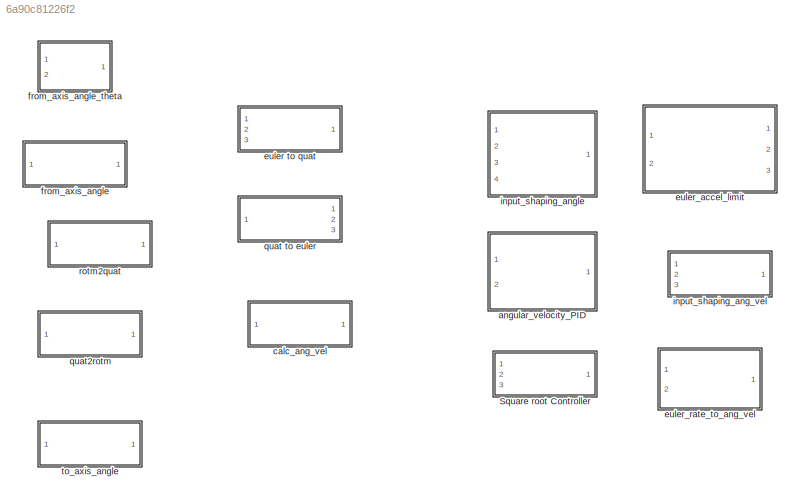
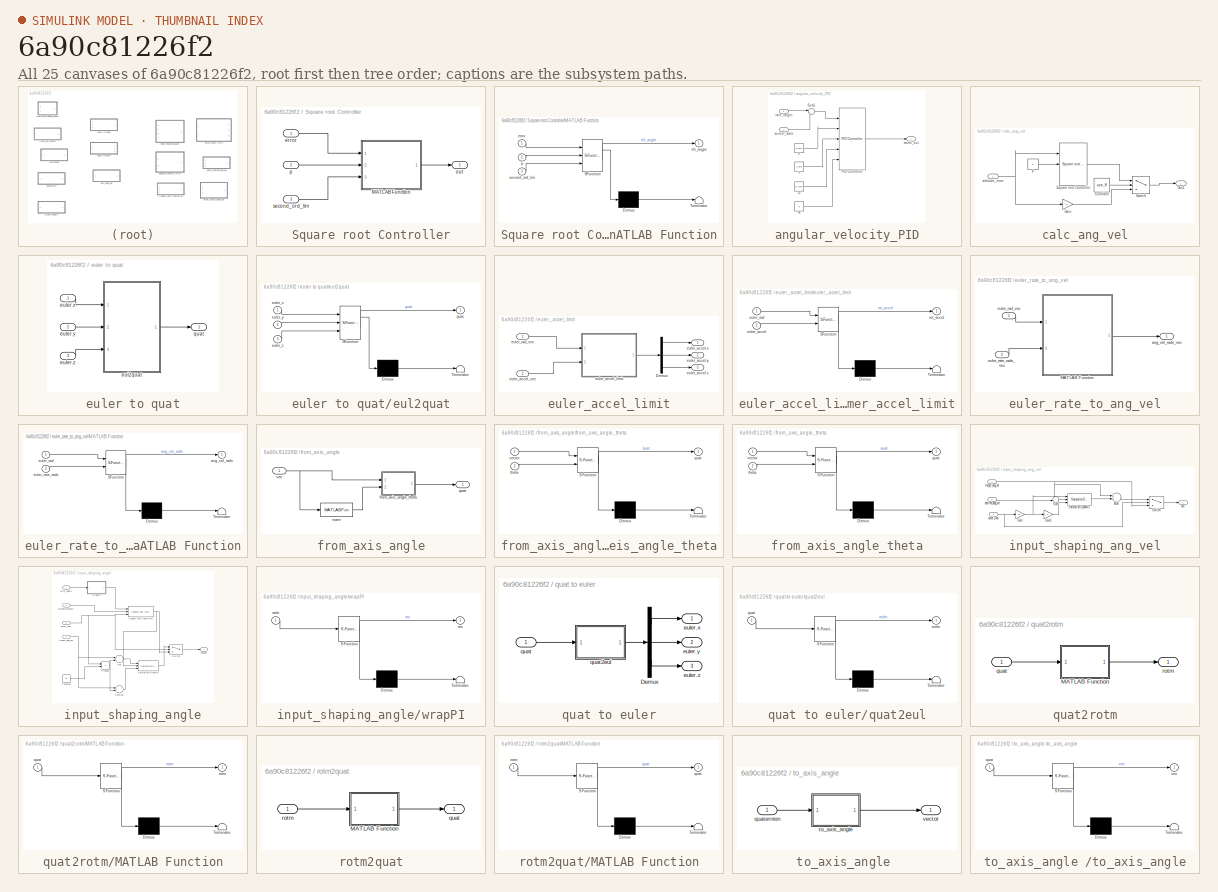
[diagram: thumbnail index - all 25 canvases of the model, root first then tree order]
MODEL slx_6a90c81226f2
KIND library
CONFIG AbsTol = auto
CONFIG FixedStep = auto
CONFIG MaxStep = auto
CONFIG MinStep = auto
CONFIG RelTol = 1e-3
CONFIG SampleTimeConstraint = Unconstrained
CONFIG Solver = ode45
CONFIG SolverMode = Auto
CONFIG SolverName = ode45
CONFIG StartTime = 0.0
CONFIG StopTime = 10.0
BLOCK [SubSystem] Square root Controller
  Ports = [3, 1]
  RequestExecContextInheritance = off
  Variant = off
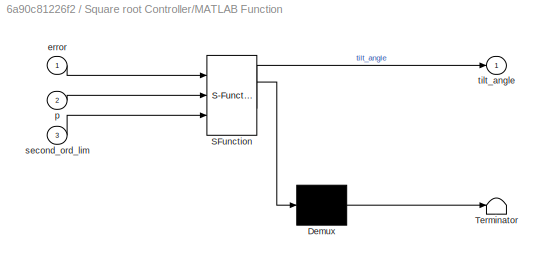
BLOCK [SubSystem] Square root Controller/MATLAB Function
  ErrorFcn = Stateflow.Translate.translate
  PermitHierarchicalResolution = ParametersOnly
  Ports = [3, 1]
  RequestExecContextInheritance = off
  SFBlockType = MATLAB Function
  TreatAsAtomicUnit = on
  Variant = off
BLOCK [Demux] Square root Controller/MATLAB Function/ Demux 
  Outputs = 1
  Ports = [1, 1]
BLOCK [S-Function] Square root Controller/MATLAB Function/ SFunction 
  EnableBusSupport = off
  FunctionName = sf_sfun
  PortCounts = [3 2]
  Ports = [3, 2]
  SFunctionDeploymentMode = off
  Tag = Stateflow S-Function arducopter_library 2
BLOCK [Terminator] Square root Controller/MATLAB Function/ Terminator 
BLOCK [Inport] Square root Controller/MATLAB Function/error
  IconDisplay = Port number
BLOCK [Inport] Square root Controller/MATLAB Function/p
  IconDisplay = Port number
  Port = 2
BLOCK [Inport] Square root Controller/MATLAB Function/second_ord_lim
  IconDisplay = Port number
  Port = 3
BLOCK [Outport] Square root Controller/MATLAB Function/tilt_angle
  IconDisplay = Port number
BLOCK [Inport] Square root Controller/error
  IconDisplay = Port number
BLOCK [Outport] Square root Controller/out
  IconDisplay = Port number
BLOCK [Inport] Square root Controller/p
  IconDisplay = Port number
  Port = 2
BLOCK [Inport] Square root Controller/second_ord_lim
  IconDisplay = Port number
  Port = 3
BLOCK [SubSystem] angular_velocity_PID
  Ports = [2, 1]
  RequestExecContextInheritance = off
  Variant = off
BLOCK [Constant] angular_velocity_PID/D
  Value = D_rate
BLOCK [Constant] angular_velocity_PID/I
  Value = I_rate
BLOCK [Constant] angular_velocity_PID/N
  Value = N
BLOCK [Constant] angular_velocity_PID/P
  Value = P_rate
BLOCK [Reference] angular_velocity_PID/PID Controller  REF=simulink/Continuous/PID Controller
  AntiWindupMode = none
  Controller = PID
  ControllerParametersSource = external
  D = 0
  DGainOutDataTypeStr = Inherit: Inherit via internal rule
  DOutDataTypeStr = Inherit: Inherit via internal rule
  DOutMax = []
  DOutMin = []
  DParamDataTypeStr = Inherit: Inherit via internal rule
  DParamMax = []
  DParamMin = []
  DProdOutDataTypeStr = Inherit: Inherit via internal rule
  DifferentiatorICPrevScaledInput = 0
  DifferentiatorOutDataTypeStr = Inherit: Inherit via internal rule
  DifferentiatorOutMax = []
  DifferentiatorOutMin = []
  ExternalReset = none
  FilterContinuousStateAttributes = ''
  FilterMethod = Forward Euler
  FilterOutDataTypeStr = Inherit: Inherit via internal rule
  FilterOutMax = []
  FilterOutMin = []
  FilterRTWStateStorageClass = Auto
  FilterStateMustResolveToSignalObject = off
  Form = Parallel
  I = 1
  IGainOutDataTypeStr = Inherit: Inherit via internal rule
  IOutDataTypeStr = Inherit: Inherit via internal rule
  IOutMax = []
  IOutMin = []
  IParamDataTypeStr = Inherit: Inherit via internal rule
  IParamMax = []
  IParamMin = []
  IProdOutDataTypeStr = Inherit: Inherit via internal rule
  IgnoreLimit = off
  InitialConditionForFilter = 0
  InitialConditionForIntegrator = 0
  InitialConditionSource = internal
  IntegratorContinuousStateAttributes = ''
  IntegratorMethod = Forward Euler
  IntegratorOutDataTypeStr = Inherit: Inherit via internal rule
  IntegratorOutMax = []
  IntegratorOutMin = []
  IntegratorRTWStateStorageClass = Auto
  IntegratorStateMustResolveToSignalObject = off
  Kb = 1
  KbOutDataTypeStr = Inherit: Inherit via internal rule
  KbOutMax = []
  KbOutMin = []
  KbParamDataTypeStr = Inherit: Inherit via internal rule
  KbParamMax = []
  KbParamMin = []
  Kt = 1
  KtOutDataTypeStr = Inherit: Inherit via internal rule
  KtOutMax = []
  KtOutMin = []
  KtParamDataTypeStr = Inherit: Inherit via internal rule
  KtParamMax = []
  KtParamMin = []
  LimitOutput = off
  LinearizeAsGain = on
  LockScale = off
  LowerSaturationLimit = -inf
  N = 100
  NGainOutDataTypeStr = Inherit: Inherit via internal rule
  NOutDataTypeStr = Inherit: Inherit via internal rule
  NOutMax = []
  NOutMin = []
  NParamDataTypeStr = Inherit: Inherit via internal rule
  NParamMax = []
  NParamMin = []
  NProdOutDataTypeStr = Inherit: Inherit via internal rule
  P = 1
  PGainOutDataTypeStr = Inherit: Inherit via internal rule
  POutDataTypeStr = Inherit: Inherit via internal rule
  POutMax = []
  POutMin = []
  PParamDataTypeStr = Inherit: Inherit via internal rule
  PParamMax = []
  PParamMin = []
  PProdOutDataTypeStr = Inherit: Inherit via internal rule
  Ports = [5, 1]
  RndMeth = Floor
  SampleTime = -1
  SaturateOnIntegerOverflow = off
  SaturationOutDataTypeStr = Inherit: Same as input
  SaturationOutMax = []
  SaturationOutMin = []
  SourceBlock = simulink/Continuous/PID Controller
  SourceType = PID 1dof
  SumAccumDataTypeStr = Inherit: Inherit via internal rule
  SumDAccumDataTypeStr = Inherit: Inherit via internal rule
  SumDOutDataTypeStr = Inherit: Inherit via internal rule
  SumDOutMax = []
  SumDOutMin = []
  SumI1AccumDataTypeStr = Inherit: Inherit via internal rule
  SumI1OutDataTypeStr = Inherit: Inherit via internal rule
  SumI1OutMax = []
  SumI1OutMin = []
  SumI2AccumDataTypeStr = Inherit: Inherit via internal rule
  SumI2OutDataTypeStr = Inherit: Inherit via internal rule
  SumI2OutMax = []
  SumI2OutMin = []
  SumI3AccumDataTypeStr = Inherit: Inherit via internal rule
  SumI3OutDataTypeStr = Inherit: Inherit via internal rule
  SumI3OutMax = []
  SumI3OutMin = []
  SumOutDataTypeStr = Inherit: Inherit via internal rule
  SumOutMax = []
  SumOutMin = []
  TimeDomain = Continuous-time
  TrackingMode = off
  UpperSaturationLimit = inf
  UseFilter = on
  ZeroCross = on
BLOCK [Sum] angular_velocity_PID/Sum1
  IconShape = round
  InputSameDT = off
  Inputs = |+-
  OutDataTypeStr = Inherit: Inherit via internal rule
  Ports = [2, 1]
  SaturateOnIntegerOverflow = off
BLOCK [Inport] angular_velocity_PID/current_state
  IconDisplay = Port number
  Port = 2
BLOCK [Outport] angular_velocity_PID/motor_out
  IconDisplay = Port number
BLOCK [Inport] angular_velocity_PID/rate_target
  IconDisplay = Port number
BLOCK [SubSystem] calc_ang_vel
  Ports = [1, 1]
  RequestExecContextInheritance = off
  Variant = off
BLOCK [Constant] calc_ang_vel/Constant
  Value = use_ff
BLOCK [Gain] calc_ang_vel/Gain
  Gain = P
  OutDataTypeStr = Inherit: Inherit via internal rule
  ParamDataTypeStr = Inherit: Inherit via internal rule
  SaturateOnIntegerOverflow = off
BLOCK [Outport] calc_ang_vel/Out1
  IconDisplay = Port number
BLOCK [Constant] calc_ang_vel/P
  Value = P
BLOCK [Reference] calc_ang_vel/Square root Controller  REF=arducopter_library/Square root Controller  (lib defined in slx_6a90c81226f2)
  FunctionWithSeparateData = off
  GeneratePreprocessorConditionals = off
  Ports = [3, 1]
  ShowPortLabels = FromPortIcon
  SourceBlock = arducopter_library/Square root Controller
  SystemSampleTime = -1
BLOCK [Switch] calc_ang_vel/Switch
  Criteria = u2 > Threshold
  InputSameDT = off
  SaturateOnIntegerOverflow = off
BLOCK [Inport] calc_ang_vel/attitude_error
  IconDisplay = Port number
BLOCK [SubSystem] euler to quat
  Ports = [3, 1]
  RequestExecContextInheritance = off
  Variant = off
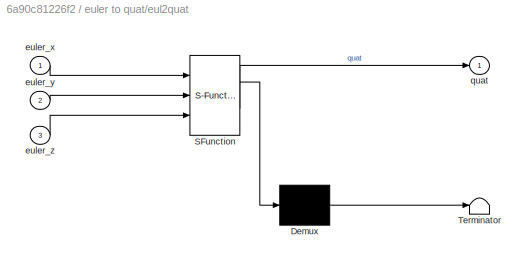
BLOCK [SubSystem] euler to quat/eul2quat
  ErrorFcn = Stateflow.Translate.translate
  PermitHierarchicalResolution = ParametersOnly
  Ports = [3, 1]
  RequestExecContextInheritance = off
  SFBlockType = MATLAB Function
  TreatAsAtomicUnit = on
  Variant = off
BLOCK [Demux] euler to quat/eul2quat/ Demux 
  Outputs = 1
  Ports = [1, 1]
BLOCK [S-Function] euler to quat/eul2quat/ SFunction 
  EnableBusSupport = off
  FunctionName = sf_sfun
  PortCounts = [3 2]
  Ports = [3, 2]
  SFunctionDeploymentMode = off
  Tag = Stateflow S-Function arducopter_library 1
BLOCK [Terminator] euler to quat/eul2quat/ Terminator 
BLOCK [Inport] euler to quat/eul2quat/euler_x
  IconDisplay = Port number
BLOCK [Inport] euler to quat/eul2quat/euler_y
  IconDisplay = Port number
  Port = 2
BLOCK [Inport] euler to quat/eul2quat/euler_z
  IconDisplay = Port number
  Port = 3
BLOCK [Outport] euler to quat/eul2quat/quat
  IconDisplay = Port number
BLOCK [Inport] euler to quat/euler.x
  IconDisplay = Port number
BLOCK [Inport] euler to quat/euler.y
  IconDisplay = Port number
  Port = 2
BLOCK [Inport] euler to quat/euler.z
  IconDisplay = Port number
  Port = 3
BLOCK [Outport] euler to quat/quat
  IconDisplay = Port number
BLOCK [SubSystem] euler_accel_limit
  Ports = [2, 3]
  RequestExecContextInheritance = off
  Variant = off
BLOCK [Demux] euler_accel_limit/Demux
  DisplayOption = bar
  Outputs = 3
  Ports = [1, 3]
BLOCK [Outport] euler_accel_limit/euler_accel.x
  IconDisplay = Port number
BLOCK [Outport] euler_accel_limit/euler_accel.y
  IconDisplay = Port number
  Port = 2
BLOCK [Outport] euler_accel_limit/euler_accel.z
  IconDisplay = Port number
  Port = 3
BLOCK [SubSystem] euler_accel_limit/euler_accel_limit
  ErrorFcn = Stateflow.Translate.translate
  PermitHierarchicalResolution = ParametersOnly
  Ports = [2, 1]
  RequestExecContextInheritance = off
  SFBlockType = MATLAB Function
  TreatAsAtomicUnit = on
  Variant = off
BLOCK [Demux] euler_accel_limit/euler_accel_limit/ Demux 
  Outputs = 1
  Ports = [1, 1]
BLOCK [S-Function] euler_accel_limit/euler_accel_limit/ SFunction 
  EnableBusSupport = off
  FunctionName = sf_sfun
  PortCounts = [2 2]
  Ports = [2, 2]
  SFunctionDeploymentMode = off
  Tag = Stateflow S-Function arducopter_library 4
BLOCK [Terminator] euler_accel_limit/euler_accel_limit/ Terminator 
BLOCK [Inport] euler_accel_limit/euler_accel_limit/euler_accel
  IconDisplay = Port number
  Port = 2
BLOCK [Inport] euler_accel_limit/euler_accel_limit/euler_rad
  IconDisplay = Port number
BLOCK [Outport] euler_accel_limit/euler_accel_limit/rot_accel
  IconDisplay = Port number
BLOCK [Inport] euler_accel_limit/euler_accel_vec
  IconDisplay = Port number
  Port = 2
BLOCK [Inport] euler_accel_limit/euler_rad_vec
  IconDisplay = Port number
BLOCK [SubSystem] euler_rate_to_ang_vel
  Ports = [2, 1]
  RequestExecContextInheritance = off
  Variant = off
BLOCK [SubSystem] euler_rate_to_ang_vel/MATLAB Function
  ErrorFcn = Stateflow.Translate.translate
  PermitHierarchicalResolution = ParametersOnly
  Ports = [2, 1]
  RequestExecContextInheritance = off
  SFBlockType = MATLAB Function
  TreatAsAtomicUnit = on
  Variant = off
BLOCK [Demux] euler_rate_to_ang_vel/MATLAB Function/ Demux 
  Outputs = 1
  Ports = [1, 1]
BLOCK [S-Function] euler_rate_to_ang_vel/MATLAB Function/ SFunction 
  EnableBusSupport = off
  FunctionName = sf_sfun
  PortCounts = [2 2]
  Ports = [2, 2]
  SFunctionDeploymentMode = off
  Tag = Stateflow S-Function arducopter_library 6
BLOCK [Terminator] euler_rate_to_ang_vel/MATLAB Function/ Terminator 
BLOCK [Outport] euler_rate_to_ang_vel/MATLAB Function/ang_vel_rads
  IconDisplay = Port number
BLOCK [Inport] euler_rate_to_ang_vel/MATLAB Function/euler_rad
  IconDisplay = Port number
BLOCK [Inport] euler_rate_to_ang_vel/MATLAB Function/euler_rate_rads
  IconDisplay = Port number
  Port = 2
BLOCK [Outport] euler_rate_to_ang_vel/ang_vel_rads_vec
  IconDisplay = Port number
BLOCK [Inport] euler_rate_to_ang_vel/euler_rad_vec
  IconDisplay = Port number
BLOCK [Inport] euler_rate_to_ang_vel/euler_rate_rads_vec
  IconDisplay = Port number
  Port = 2
BLOCK [SubSystem] from_axis_angle
  Ports = [1, 1]
  RequestExecContextInheritance = off
  Variant = off
BLOCK [SubSystem] from_axis_angle/from_axis_angle_theta
  ErrorFcn = Stateflow.Translate.translate
  PermitHierarchicalResolution = ParametersOnly
  Ports = [2, 1]
  RequestExecContextInheritance = off
  SFBlockType = MATLAB Function
  TreatAsAtomicUnit = on
  Variant = off
BLOCK [Demux] from_axis_angle/from_axis_angle_theta/ Demux 
  Outputs = 1
  Ports = [1, 1]
BLOCK [S-Function] from_axis_angle/from_axis_angle_theta/ SFunction 
  EnableBusSupport = off
  FunctionName = sf_sfun
  PortCounts = [2 2]
  Ports = [2, 2]
  SFunctionDeploymentMode = off
  Tag = Stateflow S-Function arducopter_library 10
BLOCK [Terminator] from_axis_angle/from_axis_angle_theta/ Terminator 
BLOCK [Outport] from_axis_angle/from_axis_angle_theta/quat
  IconDisplay = Port number
BLOCK [Inport] from_axis_angle/from_axis_angle_theta/theta
  IconDisplay = Port number
  Port = 2
BLOCK [Inport] from_axis_angle/from_axis_angle_theta/vector
  IconDisplay = Port number
BLOCK [MATLABFcn] from_axis_angle/norm 
  MATLABFcn = norm
  Ports = [1, 1]
BLOCK [Outport] from_axis_angle/quat
  IconDisplay = Port number
BLOCK [Inport] from_axis_angle/vec
  IconDisplay = Port number
BLOCK [SubSystem] from_axis_angle_theta
  ErrorFcn = Stateflow.Translate.translate
  PermitHierarchicalResolution = ParametersOnly
  Ports = [2, 1]
  RequestExecContextInheritance = off
  SFBlockType = MATLAB Function
  TreatAsAtomicUnit = on
  Variant = off
BLOCK [Demux] from_axis_angle_theta/ Demux 
  Outputs = 1
  Ports = [1, 1]
BLOCK [S-Function] from_axis_angle_theta/ SFunction 
  EnableBusSupport = off
  FunctionName = sf_sfun
  PortCounts = [2 2]
  Ports = [2, 2]
  SFunctionDeploymentMode = off
  Tag = Stateflow S-Function arducopter_library 9
BLOCK [Terminator] from_axis_angle_theta/ Terminator 
BLOCK [Outport] from_axis_angle_theta/quat
  IconDisplay = Port number
BLOCK [Inport] from_axis_angle_theta/theta
  IconDisplay = Port number
  Port = 2
BLOCK [Inport] from_axis_angle_theta/vector
  IconDisplay = Port number
BLOCK [SubSystem] input_shaping_ang_vel
  Ports = [3, 1]
  RequestExecContextInheritance = off
  Variant = off
BLOCK [Sum] input_shaping_ang_vel/Add
  InputSameDT = off
  OutDataTypeStr = Inherit: Inherit via internal rule
  Ports = [2, 1]
  SaturateOnIntegerOverflow = off
BLOCK [Gain] input_shaping_ang_vel/Gain
  Gain = dt
  OutDataTypeStr = Inherit: Inherit via internal rule
  ParamDataTypeStr = Inherit: Inherit via internal rule
  SaturateOnIntegerOverflow = off
BLOCK [Gain] input_shaping_ang_vel/Gain1
  Gain = -1
  OutDataTypeStr = Inherit: Inherit via internal rule
  ParamDataTypeStr = Inherit: Inherit via internal rule
  SaturateOnIntegerOverflow = off
BLOCK [Reference] input_shaping_ang_vel/Saturation Dynamic  REF=simulink/Discontinuities/Saturation
Dynamic
  DoSatur = off
  LockScale = off
  OutDataType = fixdt(1, 16)
  OutDataTypeStr = Inherit: Same as second input
  OutMax = []
  OutMin = []
  OutScaling = 2^-10
  OutputDataTypeScalingMode = Same as second input
  Ports = [3, 1]
  RndMeth = Floor
  SourceBlock = simulink/Discontinuities/Saturation\nDynamic
  SourceType = Saturation Dynamic
BLOCK [Sum] input_shaping_ang_vel/Sum
  IconShape = round
  InputSameDT = off
  Inputs = -+|
  OutDataTypeStr = Inherit: Inherit via internal rule
  Ports = [2, 1]
  SaturateOnIntegerOverflow = off
BLOCK [Switch] input_shaping_ang_vel/Switch
  Criteria = u2 > Threshold
  InputSameDT = off
  SaturateOnIntegerOverflow = off
BLOCK [Outport] input_shaping_ang_vel/acc
  IconDisplay = Port number
BLOCK [Inport] input_shaping_ang_vel/accel_max
  IconDisplay = Port number
  Port = 3
BLOCK [Inport] input_shaping_ang_vel/desired_ang_vel
  IconDisplay = Port number
  Port = 2
BLOCK [Inport] input_shaping_ang_vel/target_ang_vel
  IconDisplay = Port number
BLOCK [SubSystem] input_shaping_angle
  Ports = [4, 1]
  RequestExecContextInheritance = off
  Variant = off
BLOCK [Sum] input_shaping_angle/Add
  InputSameDT = off
  OutDataTypeStr = Inherit: Inherit via internal rule
  Ports = [2, 1]
  SaturateOnIntegerOverflow = off
BLOCK [Constant] input_shaping_angle/Constant
  Value = dt
BLOCK [Product] input_shaping_angle/Product
  InputSameDT = off
  OutDataTypeStr = Inherit: Inherit via internal rule
  Ports = [2, 1]
  RndMeth = Floor
  SaturateOnIntegerOverflow = off
BLOCK [Reference] input_shaping_angle/Saturation Dynamic  REF=simulink/Discontinuities/Saturation
Dynamic
  DoSatur = off
  LockScale = off
  OutDataType = fixdt(1, 16)
  OutDataTypeStr = Inherit: Same as second input
  OutMax = []
  OutMin = []
  OutScaling = 2^-10
  OutputDataTypeScalingMode = Same as second input
  Ports = [3, 1]
  RndMeth = Floor
  SourceBlock = simulink/Discontinuities/Saturation\nDynamic
  SourceType = Saturation Dynamic
BLOCK [Reference] input_shaping_angle/Square root Controller  REF=arducopter_library/Square root Controller  (lib defined in slx_6a90c81226f2)
  FunctionWithSeparateData = off
  GeneratePreprocessorConditionals = off
  Ports = [3, 1]
  ShowPortLabels = FromPortIcon
  SourceBlock = arducopter_library/Square root Controller
  SystemSampleTime = -1
BLOCK [Sum] input_shaping_angle/Subtract
  InputSameDT = off
  Inputs = +-
  OutDataTypeStr = Inherit: Inherit via internal rule
  Ports = [2, 1]
  SaturateOnIntegerOverflow = off
BLOCK [Switch] input_shaping_angle/Switch
  Criteria = u2 > Threshold
  InputSameDT = off
  SaturateOnIntegerOverflow = off
BLOCK [Inport] input_shaping_angle/accel_max
  IconDisplay = Port number
  Port = 3
BLOCK [Inport] input_shaping_angle/error_angle
  IconDisplay = Port number
BLOCK [Outport] input_shaping_angle/shaped
  IconDisplay = Port number
BLOCK [Inport] input_shaping_angle/smoothing_gain
  IconDisplay = Port number
  Port = 2
BLOCK [Inport] input_shaping_angle/target_ang_vel
  IconDisplay = Port number
  Port = 4
BLOCK [SubSystem] input_shaping_angle/wrapPI
  ErrorFcn = Stateflow.Translate.translate
  PermitHierarchicalResolution = ParametersOnly
  Ports = [1, 1]
  RequestExecContextInheritance = off
  SFBlockType = MATLAB Function
  TreatAsAtomicUnit = on
  Variant = off
BLOCK [Demux] input_shaping_angle/wrapPI/ Demux 
  Outputs = 1
  Ports = [1, 1]
BLOCK [S-Function] input_shaping_angle/wrapPI/ SFunction 
  EnableBusSupport = off
  FunctionName = sf_sfun
  PortCounts = [1 2]
  Ports = [1, 2]
  SFunctionDeploymentMode = off
  Tag = Stateflow S-Function arducopter_library 5
BLOCK [Terminator] input_shaping_angle/wrapPI/ Terminator 
BLOCK [Inport] input_shaping_angle/wrapPI/rads
  IconDisplay = Port number
BLOCK [Outport] input_shaping_angle/wrapPI/res
  IconDisplay = Port number
BLOCK [SubSystem] quat to euler
  Ports = [1, 3]
  RequestExecContextInheritance = off
  Variant = off
BLOCK [Demux] quat to euler/Demux
  DisplayOption = bar
  Outputs = 3
  Ports = [1, 3]
BLOCK [Outport] quat to euler/euler.x
  IconDisplay = Port number
BLOCK [Outport] quat to euler/euler.y
  IconDisplay = Port number
  Port = 2
BLOCK [Outport] quat to euler/euler.z
  IconDisplay = Port number
  Port = 3
BLOCK [Inport] quat to euler/quat
  IconDisplay = Port number
BLOCK [SubSystem] quat to euler/quat2eul
  ErrorFcn = Stateflow.Translate.translate
  PermitHierarchicalResolution = ParametersOnly
  Ports = [1, 1]
  RequestExecContextInheritance = off
  SFBlockType = MATLAB Function
  TreatAsAtomicUnit = on
  Variant = off
BLOCK [Demux] quat to euler/quat2eul/ Demux 
  Outputs = 1
  Ports = [1, 1]
BLOCK [S-Function] quat to euler/quat2eul/ SFunction 
  EnableBusSupport = off
  FunctionName = sf_sfun
  PortCounts = [1 2]
  Ports = [1, 2]
  SFunctionDeploymentMode = off
  Tag = Stateflow S-Function arducopter_library 3
BLOCK [Terminator] quat to euler/quat2eul/ Terminator 
BLOCK [Outport] quat to euler/quat2eul/euler
  IconDisplay = Port number
BLOCK [Inport] quat to euler/quat2eul/quat
  IconDisplay = Port number
BLOCK [SubSystem] quat2rotm
  Ports = [1, 1]
  RequestExecContextInheritance = off
  Variant = off
BLOCK [SubSystem] quat2rotm/MATLAB Function
  ErrorFcn = Stateflow.Translate.translate
  PermitHierarchicalResolution = ParametersOnly
  Ports = [1, 1]
  RequestExecContextInheritance = off
  SFBlockType = MATLAB Function
  TreatAsAtomicUnit = on
  Variant = off
BLOCK [Demux] quat2rotm/MATLAB Function/ Demux 
  Outputs = 1
  Ports = [1, 1]
BLOCK [S-Function] quat2rotm/MATLAB Function/ SFunction 
  EnableBusSupport = off
  FunctionName = sf_sfun
  PortCounts = [1 2]
  Ports = [1, 2]
  SFunctionDeploymentMode = off
  Tag = Stateflow S-Function arducopter_library 8
BLOCK [Terminator] quat2rotm/MATLAB Function/ Terminator 
BLOCK [Inport] quat2rotm/MATLAB Function/quat
  IconDisplay = Port number
BLOCK [Outport] quat2rotm/MATLAB Function/rotm
  IconDisplay = Port number
BLOCK [Inport] quat2rotm/quat
  IconDisplay = Port number
BLOCK [Outport] quat2rotm/rotm
  IconDisplay = Port number
BLOCK [SubSystem] rotm2quat
  Ports = [1, 1]
  RequestExecContextInheritance = off
  Variant = off
BLOCK [SubSystem] rotm2quat/MATLAB Function
  ErrorFcn = Stateflow.Translate.translate
  PermitHierarchicalResolution = ParametersOnly
  Ports = [1, 1]
  RequestExecContextInheritance = off
  SFBlockType = MATLAB Function
  TreatAsAtomicUnit = on
  Variant = off
BLOCK [Demux] rotm2quat/MATLAB Function/ Demux 
  Outputs = 1
  Ports = [1, 1]
BLOCK [S-Function] rotm2quat/MATLAB Function/ SFunction 
  EnableBusSupport = off
  FunctionName = sf_sfun
  PortCounts = [1 2]
  Ports = [1, 2]
  SFunctionDeploymentMode = off
  Tag = Stateflow S-Function arducopter_library 7
BLOCK [Terminator] rotm2quat/MATLAB Function/ Terminator 
BLOCK [Outport] rotm2quat/MATLAB Function/quat
  IconDisplay = Port number
BLOCK [Inport] rotm2quat/MATLAB Function/rotm
  IconDisplay = Port number
BLOCK [Outport] rotm2quat/quat
  IconDisplay = Port number
BLOCK [Inport] rotm2quat/rotm
  IconDisplay = Port number
BLOCK [SubSystem] to_axis_angle 
  Ports = [1, 1]
  RequestExecContextInheritance = off
  Variant = off
BLOCK [Inport] to_axis_angle /quaternion
  IconDisplay = Port number
BLOCK [SubSystem] to_axis_angle /to_axis_angle
  ErrorFcn = Stateflow.Translate.translate
  PermitHierarchicalResolution = ParametersOnly
  Ports = [1, 1]
  RequestExecContextInheritance = off
  SFBlockType = MATLAB Function
  TreatAsAtomicUnit = on
  Variant = off
BLOCK [Demux] to_axis_angle /to_axis_angle/ Demux 
  Outputs = 1
  Ports = [1, 1]
BLOCK [S-Function] to_axis_angle /to_axis_angle/ SFunction 
  EnableBusSupport = off
  FunctionName = sf_sfun
  PortCounts = [1 2]
  Ports = [1, 2]
  SFunctionDeploymentMode = off
  Tag = Stateflow S-Function arducopter_library 11
BLOCK [Terminator] to_axis_angle /to_axis_angle/ Terminator 
BLOCK [Inport] to_axis_angle /to_axis_angle/quat
  IconDisplay = Port number
BLOCK [Outport] to_axis_angle /to_axis_angle/vec
  IconDisplay = Port number
BLOCK [Outport] to_axis_angle /vector
  IconDisplay = Port number
LINE Square root Controller/MATLAB Function:1 -> Square root Controller/out:1
LINE Square root Controller/error:1 -> Square root Controller/MATLAB Function:1
LINE Square root Controller/p:1 -> Square root Controller/MATLAB Function:2
LINE Square root Controller/second_ord_lim:1 -> Square root Controller/MATLAB Function:3
LINE angular_velocity_PID/D:1 -> angular_velocity_PID/PID Controller:4
LINE angular_velocity_PID/I:1 -> angular_velocity_PID/PID Controller:3
LINE angular_velocity_PID/N:1 -> angular_velocity_PID/PID Controller:5
LINE angular_velocity_PID/P:1 -> angular_velocity_PID/PID Controller:2
LINE angular_velocity_PID/PID Controller:1 -> angular_velocity_PID/motor_out:1
LINE angular_velocity_PID/Sum1:1 -> angular_velocity_PID/PID Controller:1
LINE angular_velocity_PID/current_state:1 -> angular_velocity_PID/Sum1:2
LINE angular_velocity_PID/rate_target:1 -> angular_velocity_PID/Sum1:1
LINE calc_ang_vel/Constant:1 -> calc_ang_vel/Switch:2
LINE calc_ang_vel/Gain:1 -> calc_ang_vel/Switch:3
LINE calc_ang_vel/P:1 -> calc_ang_vel/Square root Controller:2
LINE calc_ang_vel/Square root Controller:1 -> calc_ang_vel/Switch:1
LINE calc_ang_vel/Switch:1 -> calc_ang_vel/Out1:1
NET calc_ang_vel/attitude_error:1 -> calc_ang_vel/Gain:1, calc_ang_vel/Square root Controller:1
LINE euler to quat/eul2quat:1 -> euler to quat/quat:1
LINE euler to quat/euler.x:1 -> euler to quat/eul2quat:1
LINE euler to quat/euler.y:1 -> euler to quat/eul2quat:2
LINE euler to quat/euler.z:1 -> euler to quat/eul2quat:3
LINE euler_accel_limit/Demux:1 -> euler_accel_limit/euler_accel.x:1
LINE euler_accel_limit/Demux:2 -> euler_accel_limit/euler_accel.y:1
LINE euler_accel_limit/Demux:3 -> euler_accel_limit/euler_accel.z:1
LINE euler_accel_limit/euler_accel_limit:1 -> euler_accel_limit/Demux:1
LINE euler_accel_limit/euler_accel_vec:1 -> euler_accel_limit/euler_accel_limit:2
LINE euler_accel_limit/euler_rad_vec:1 -> euler_accel_limit/euler_accel_limit:1
LINE euler_rate_to_ang_vel/MATLAB Function:1 -> euler_rate_to_ang_vel/ang_vel_rads_vec:1
LINE euler_rate_to_ang_vel/euler_rad_vec:1 -> euler_rate_to_ang_vel/MATLAB Function:1
LINE euler_rate_to_ang_vel/euler_rate_rads_vec:1 -> euler_rate_to_ang_vel/MATLAB Function:2
LINE from_axis_angle/from_axis_angle_theta:1 -> from_axis_angle/quat:1
LINE from_axis_angle/norm :1 -> from_axis_angle/from_axis_angle_theta:2
NET from_axis_angle/vec:1 -> from_axis_angle/from_axis_angle_theta:1, from_axis_angle/norm :1
LINE input_shaping_ang_vel/Add:1 -> input_shaping_ang_vel/Switch:1
LINE input_shaping_ang_vel/Gain1:1 -> input_shaping_ang_vel/Saturation Dynamic:3
NET input_shaping_ang_vel/Gain:1 -> input_shaping_ang_vel/Gain1:1, input_shaping_ang_vel/Saturation Dynamic:1
LINE input_shaping_ang_vel/Saturation Dynamic:1 -> input_shaping_ang_vel/Add:2
LINE input_shaping_ang_vel/Sum:1 -> input_shaping_ang_vel/Saturation Dynamic:2
LINE input_shaping_ang_vel/Switch:1 -> input_shaping_ang_vel/acc:1
NET input_shaping_ang_vel/accel_max:1 -> input_shaping_ang_vel/Gain:1, input_shaping_ang_vel/Switch:2
LINE input_shaping_ang_vel/desired_ang_vel:1 -> input_shaping_ang_vel/Sum:2
NET input_shaping_ang_vel/target_ang_vel:1 -> input_shaping_ang_vel/Add:1, input_shaping_ang_vel/Sum:1, input_shaping_ang_vel/Switch:3
LINE input_shaping_angle/Add:1 -> input_shaping_angle/Saturation Dynamic:1
LINE input_shaping_angle/Constant:1 -> input_shaping_angle/Product:2
NET input_shaping_angle/Product:1 -> input_shaping_angle/Add:2, input_shaping_angle/Subtract:2
LINE input_shaping_angle/Saturation Dynamic:1 -> input_shaping_angle/Switch:1
NET input_shaping_angle/Square root Controller:1 -> input_shaping_angle/Saturation Dynamic:2, input_shaping_angle/Switch:3
LINE input_shaping_angle/Subtract:1 -> input_shaping_angle/Saturation Dynamic:3
LINE input_shaping_angle/Switch:1 -> input_shaping_angle/shaped:1
NET input_shaping_angle/accel_max:1 -> input_shaping_angle/Product:1, input_shaping_angle/Square root Controller:3, input_shaping_angle/Switch:2
LINE input_shaping_angle/error_angle:1 -> input_shaping_angle/wrapPI:1
LINE input_shaping_angle/smoothing_gain:1 -> input_shaping_angle/Square root Controller:2
NET input_shaping_angle/target_ang_vel:1 -> input_shaping_angle/Add:1, input_shaping_angle/Subtract:1
LINE input_shaping_angle/wrapPI:1 -> input_shaping_angle/Square root Controller:1
LINE quat to euler/Demux:1 -> quat to euler/euler.x:1
LINE quat to euler/Demux:2 -> quat to euler/euler.y:1
LINE quat to euler/Demux:3 -> quat to euler/euler.z:1
LINE quat to euler/quat2eul:1 -> quat to euler/Demux:1
LINE quat to euler/quat:1 -> quat to euler/quat2eul:1
LINE quat2rotm/MATLAB Function:1 -> quat2rotm/rotm:1
LINE quat2rotm/quat:1 -> quat2rotm/MATLAB Function:1
LINE rotm2quat/MATLAB Function:1 -> rotm2quat/quat:1
LINE rotm2quat/rotm:1 -> rotm2quat/MATLAB Function:1
LINE to_axis_angle /quaternion:1 -> to_axis_angle /to_axis_angle:1
LINE to_axis_angle /to_axis_angle:1 -> to_axis_angle /vector:1
note: NET lines group one-source signal fan-out (src -> all destinations, sorted); 1:1 wires keep LINE
CHART euler to quat/eul2quat states=1 transitions=1
  STATE_LABEL 'eML_blk_kernel()'
  STATE_LABEL 'SCRIPT:\nfunction quat = fcn(euler_x, euler_y, euler_z)\n% Eul to quat with zyx order\nquat = eul2quat([euler_z, euler_y, euler_x]);'
CHART Square root Controller/MATLAB Function states=1 transitions=1
  STATE_LABEL 'eML_blk_kernel()'
  STATE_LABEL 'SCRIPT:\nfunction tilt_angle = sqr_ctrl(error, p, second_ord_lim)\n    if second_ord_lim <= 0 || p==0\n        tilt_angle = error * p;\n        return\n    end\n    \n    linear_dist = second_ord_lim/(p^2);\n    \n    if error > linear_dist\n        tilt_angle = sqrt(2*second_ord_lim*(error-(linear_dist/2)));\n        return\n    elseif error < -linear_dist\n        tilt_angle = sqrt(2*second_ord_lim*(-error-(...<+100ch>'
CHART quat to euler/quat2eul states=1 transitions=1
  STATE_LABEL 'eML_blk_kernel()'
  STATE_LABEL 'SCRIPT:\nfunction euler = fcn(quat)\n% Calculate the eulers in ZYX, and flip for [roll, pitch, yaw]\neuler = flip(quat2eul(quat));'
CHART euler_accel_limit/euler_accel_limit states=1 transitions=1
  STATE_LABEL 'eML_blk_kernel()'
  STATE_LABEL 'SCRIPT:\nfunction rot_accel = fcn(euler_rad, euler_accel)\n% This represents the AC_AttitudeControl::euler_accel_limit function\n% Translates body frame acceleration limits to the euler axis\n\nrot_accel = [euler_accel(1), 0, 0];\nif euler_accel(1)<=0 || euler_accel(2)<=0 || euler_accel(3)<=0\n    rot_accel(2) = euler_accel(2);\n    rot_accel(3) = euler_accel(3);\nelse\n    sin_phi = min(max(abs(sin(euler_r...<+347ch>'
CHART input_shaping_angle/wrapPI states=1 transitions=1
  STATE_LABEL 'eML_blk_kernel()'
  STATE_LABEL 'SCRIPT:\nfunction res = fcn(rads)\n% wraps radians within -pi and pi\nres = mod(rads, 2*pi);\n\nif res > pi\n    res = res - 2*pi;\nend\n\nreturn'
CHART euler_rate_to_ang_vel/MATLAB Function states=1 transitions=1
  STATE_LABEL 'eML_blk_kernel()'
  STATE_LABEL 'SCRIPT:\nfunction ang_vel_rads = euler_rate_to_ang_vel(euler_rad, euler_rate_rads)\n% Convert a 321-intristic euler angle derivative to an angular velocity\n% vector\n\nsin_theta = sin(euler_rad(2));\ncos_theta = cos(euler_rad(2));\nsin_phi = sin(euler_rad(1));\ncos_phi = cos(euler_rad(1));\n\nang_vel_rads = [0, 0, 0];\n\nang_vel_rads(1) = euler_rate_rads(1) - sin_theta * euler_rate_rads(3);\nang_vel_rads(2) =...<+173ch>'
CHART rotm2quat/MATLAB Function states=1 transitions=1
  STATE_LABEL 'eML_blk_kernel()'
  STATE_LABEL 'SCRIPT:\nfunction quat = fcn(rotm)\nquat = rotm2quat(rotm);'
CHART quat2rotm/MATLAB Function states=1 transitions=1
  STATE_LABEL 'eML_blk_kernel()'
  STATE_LABEL 'SCRIPT:\nfunction rotm = fcn(quat)\nrotm = quat2rotm(quat);'
CHART from_axis_angle_theta states=1 transitions=1
  STATE_LABEL 'eML_blk_kernel()'
  STATE_LABEL 'SCRIPT:\nfunction quat = fcn(vector, theta)\n% create rotation matrix for rotation about the vector v by angle theta\ntheta = sqrt(vector(1)^2 + vector(2)^2 + vector(3)^2);\n\nif (theta == 0)\n    quat = [1 0 0 0];\nelse\n    vector = vector / theta;\n    st2 = sin(theta/2);\n    quat = [cos(theta/2),\n            vector(1) * st2,\n            vector(2) * st2,\n            vector(3) * st2];\nend'
CHART from_axis_angle/from_axis_angle_theta states=1 transitions=1
  STATE_LABEL 'eML_blk_kernel()'
  STATE_LABEL 'SCRIPT:\nfunction quat = fcn(vector, theta)\n% create rotation matrix for rotation about the vector v by angle theta\nif (theta == 0)\n    quat = [1 0 0 0];\nelse\n    vector = vector / theta;\n    st2 = sin(theta/2);\n    quat = [cos(theta/2),\n            vector(1) * st2,\n            vector(2) * st2,\n            vector(3) * st2];\nend'
CHART to_axis_angle
/to_axis_angle states=1 transitions=1
  STATE_LABEL 'eML_blk_kernel()'
  STATE_LABEL 'SCRIPT:\nfunction vec = to_axis_angle(quat)\nl = norm([quat(2) quat(3) quat(4)]);\nvec = [quat(2) quat(3) quat(4)];\nif l\n    vec = vec/l;\n    res = mod(2*atan2(l, quat(1)), 2*pi);\n    if res > pi\n        res = res - 2*pi;\n    end\n    vec = vec * res;\nend\nreturn'
